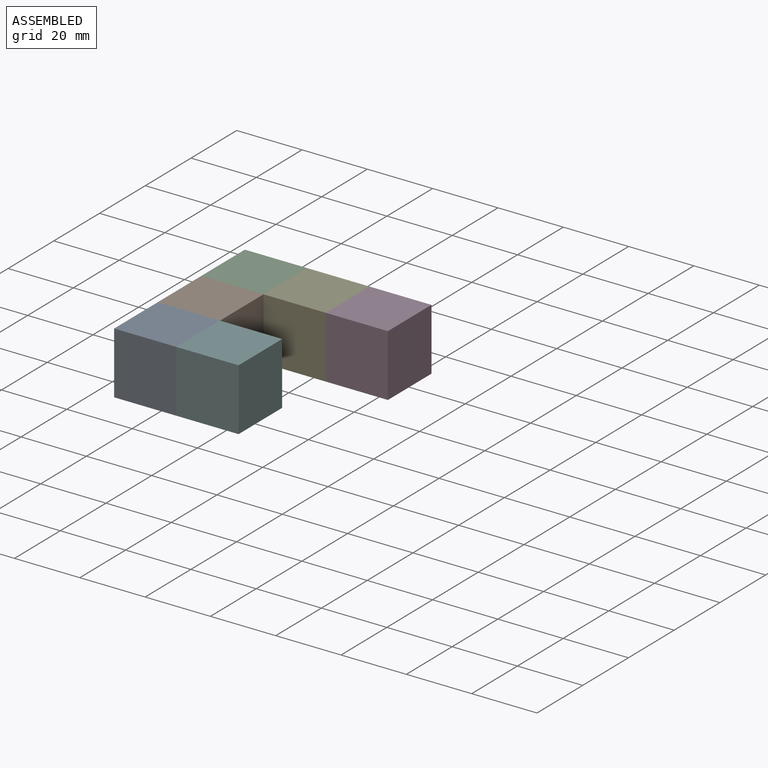
[diagram: assembled view]
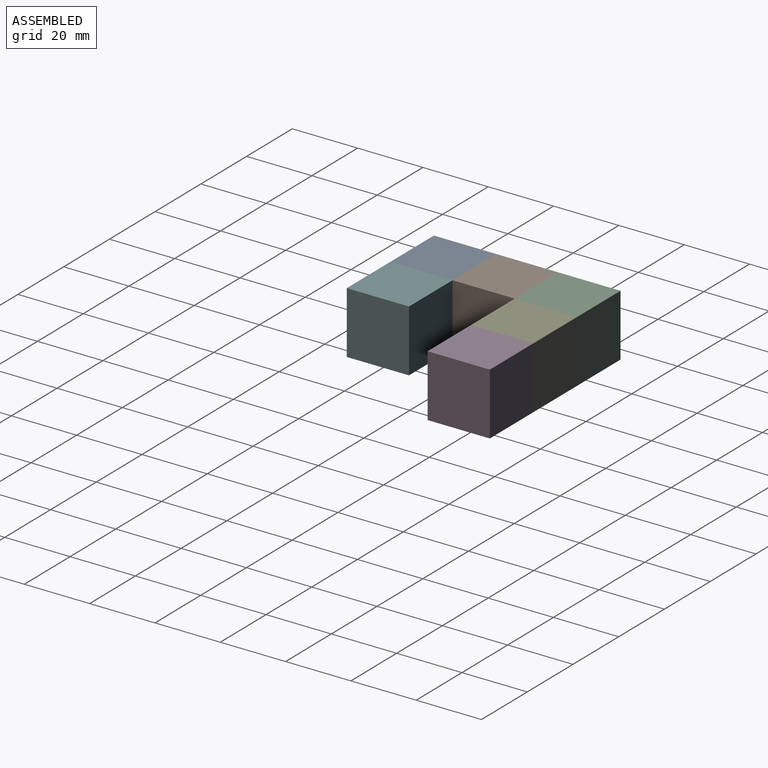
[diagram: assembled view, second angle]
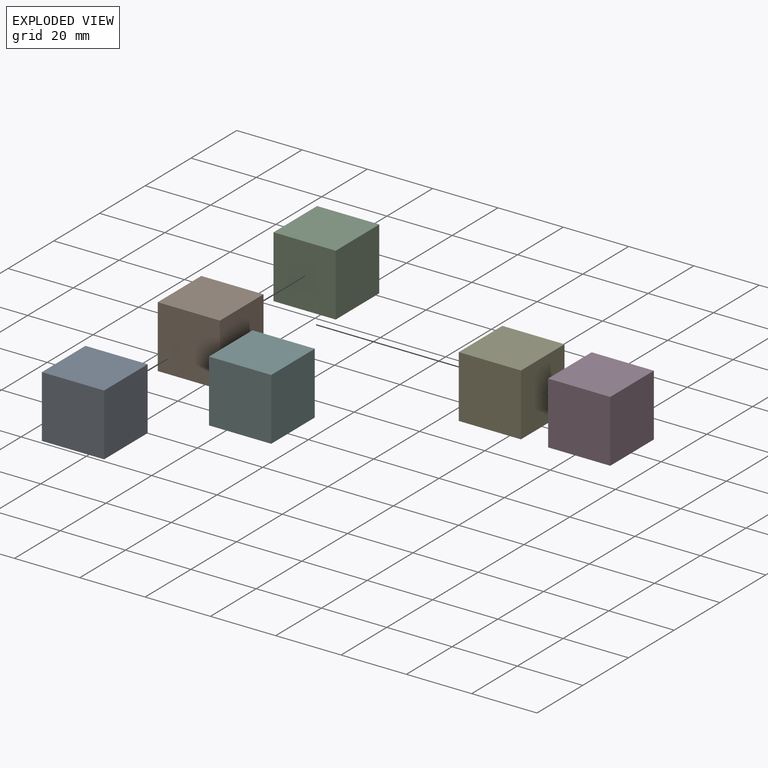
[diagram: exploded view]
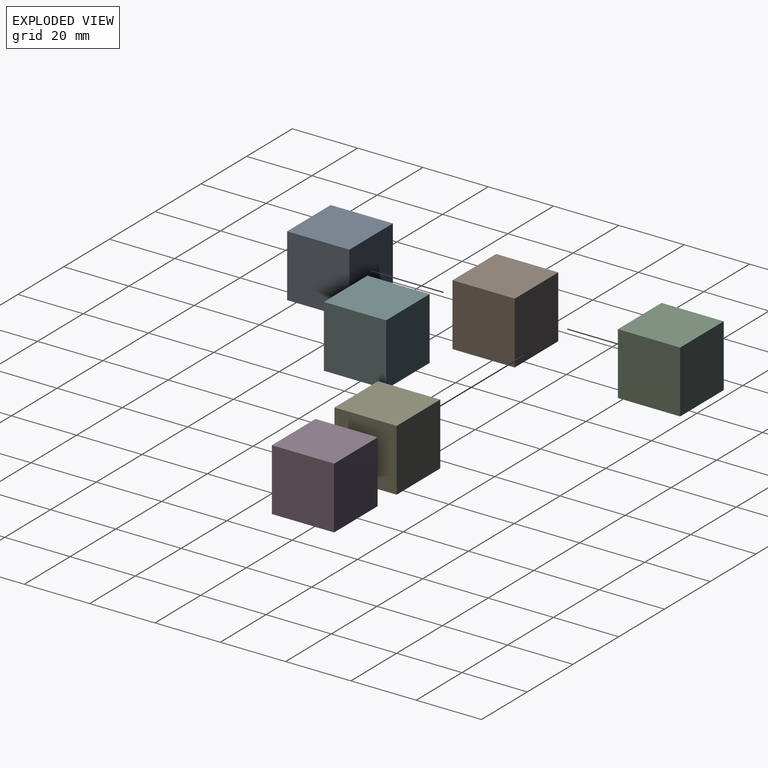
[diagram: exploded view, second angle]
ASSEMBLY  parts=6 mates=5
PART A: 6 faces, bbox 19.1x19.1x19.1 mm
  f0: plane 19.05x19.05mm, normal (-1,0,0), area 362.9mm2, adj f1,f3,f4,f5
  f1: plane 19.05x19.05mm, normal (0,0,-1), area 362.9mm2, adj f0,f2,f4,f5
  f2: plane 19.05x19.05mm, normal (1,0,0), area 362.9mm2, adj f1,f3,f4,f5
  f3: plane 19.05x19.05mm, normal (0,0,1), area 362.9mm2, adj f0,f2,f4,f5
  f4: plane 19.05x19.05mm, normal (0,-1,0), area 362.9mm2, adj f0,f1,f2,f3
  f5: plane 19.05x19.05mm, normal (0,1,0), area 362.9mm2, adj f0,f1,f2,f3
PART B: same geometry as A
PART C: same geometry as A
PART D: same geometry as A
PART E: same geometry as A
PART F: same geometry as A
PLACE A t=(-3.27,-20.05,1.34)mm
PLACE B t=(-3.27,-1,1.34)mm fixed
PLACE C t=(-3.27,18.05,1.34)mm
PLACE D t=(34.83,18.05,1.34)mm
PLACE E t=(15.78,18.05,1.34)mm
PLACE F t=(15.78,-20.05,1.34)mm
MATE fastened E.f2 <-> D.f0  axis (1,0,0) through (25.31,18.05,1.34)mm
MATE fastened B.f4 <-> A.f5  axis (0,-1,0) through (-3.27,-10.52,1.34)mm
MATE fastened A.f2 <-> F.f0  axis (1,0,0) through (6.26,-20.05,1.34)mm
MATE fastened C.f4 <-> B.f5  axis (0,-1,0) through (-3.27,8.53,1.34)mm
MATE fastened E.f0 <-> C.f2  axis (-1,0,0) through (6.26,18.05,1.34)mm
